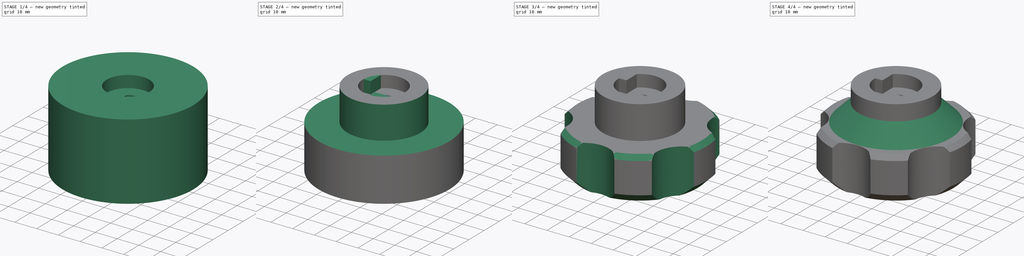
[diagram: build sequence overview — one tinted view per stage of 4, left to right]
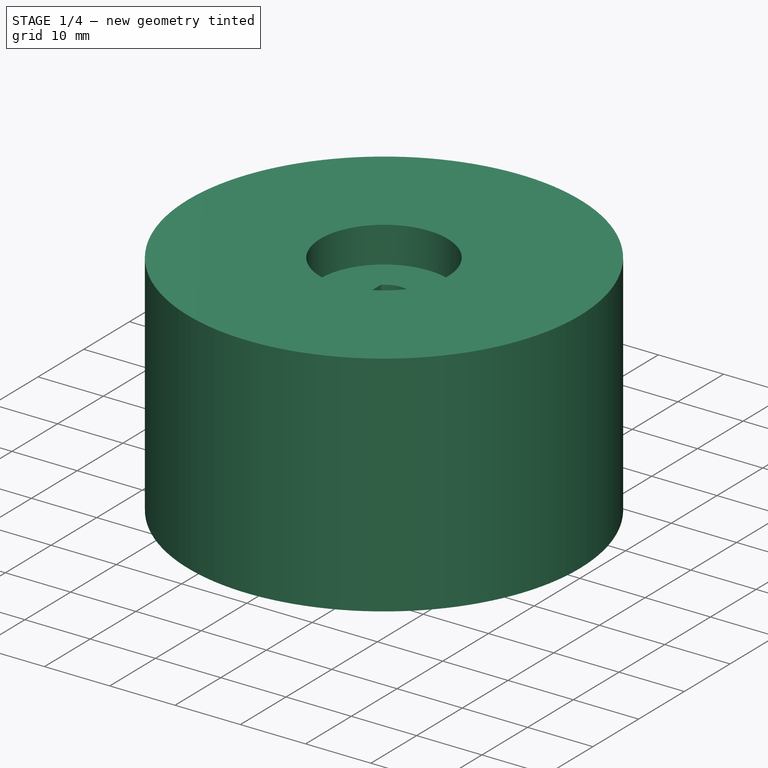
[diagram: stage 1 of 4 — iso view after this stage's code; geometry added in this stage tinted green]
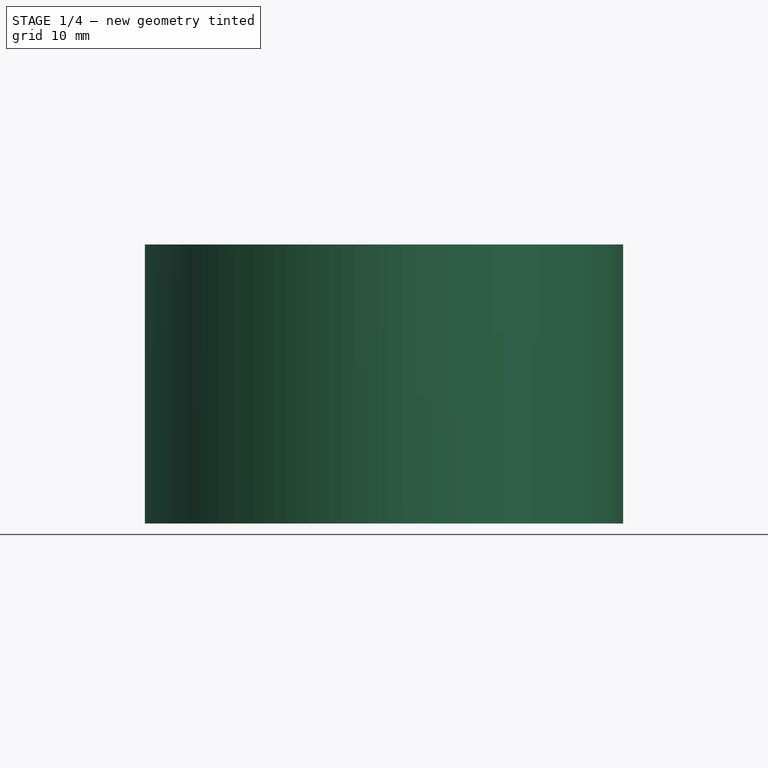
[diagram: stage 1 of 4 — front view after this stage's code; geometry added in this stage tinted green]
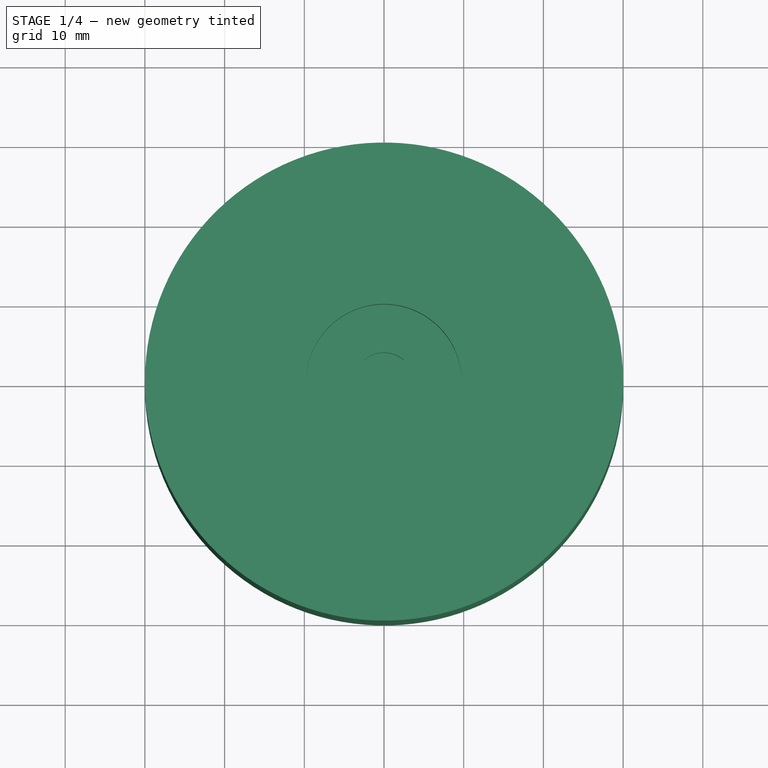
[diagram: stage 1 of 4 — top view after this stage's code; geometry added in this stage tinted green]
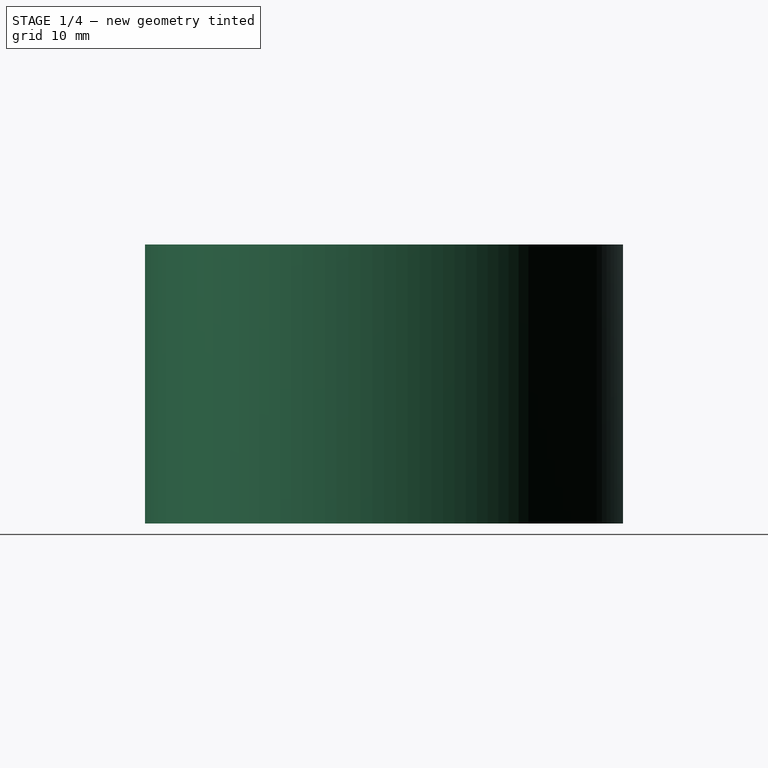
[diagram: stage 1 of 4 — right view after this stage's code; geometry added in this stage tinted green]
FCSTD DOCUMENT  (FreeCAD 0.19R)
Label: HoseKnobFront
License: All rights reserved
LicenseURL: http://en.wikipedia.org/wiki/All_rights_reserved
objects: Sketcher::SketchObject×9, PartDesign::Pocket×6, PartDesign::Chamfer×4, PartDesign::Pad×2, PartDesign::PolarPattern×1, PartDesign::Body×1
note: 35 computed .brp shape members not serialized (recipe doc carries the construction recipe); baked Part::Feature solids carry a one-line shape summary decoded from their .brp

FEATURE [Sketcher::SketchObject] Sketch
  FullyConstrained = true
  MapMode = 5
  Support = -> [XY_Plane]
  sketch-geometry (1):
    g0: Circle CenterX=0 CenterY=0 CenterZ=0 NormalX=0 NormalY=0 NormalZ=1 AngleXU=0 Radius=30
  constraints (2):
    c: Coincident(g0,g-1)
    c: Diameter(g0) = 60
FEATURE [PartDesign::Pad] Pad
  Direction = (1,1,1)
  Length = 35
  Length2 = 100
  Profile = -> Sketch
  Type = 0
FEATURE [Sketcher::SketchObject] Sketch001
  FullyConstrained = true
  MapMode = 5
  Placement = pos=(0,0,35) rot=(0,0,1;0rad)
  Support = -> [Pad]
  sketch-geometry (1):
    g0: Circle CenterX=0 CenterY=0 CenterZ=0 NormalX=0 NormalY=0 NormalZ=1 AngleXU=0 Radius=9.75
  constraints (2):
    c: Coincident(g0,g-1)
    c: Diameter(g0) = 19.5
FEATURE [PartDesign::Pocket] Pocket
  BaseFeature = -> Pad
  Length = 5.5
  Length2 = 100
  Profile = -> Sketch001
  Type = 0
FEATURE [Sketcher::SketchObject] Sketch002
  FullyConstrained = true
  MapMode = 5
  Placement = pos=(0,0,29.5) rot=(0,0,1;0rad)
  Support = -> [Pocket]
  sketch-geometry (4):
    g0: LineSegment StartX=2.45 StartY=-2.83901 StartZ=0 EndX=2.45 EndY=2.83901 EndZ=0
    g1: LineSegment StartX=-2.45 StartY=-2.83901 StartZ=0 EndX=-2.45 EndY=2.83901 EndZ=0
    g2: ArcOfCircle CenterX=0 CenterY=0 CenterZ=0 NormalX=0 NormalY=0 NormalZ=1 AngleXU=0 Radius=3.75 StartAngle=0.858817 EndAngle=2.28278
    g3: ArcOfCircle CenterX=0 CenterY=0 CenterZ=0 NormalX=0 NormalY=0 NormalZ=1 AngleXU=0 Radius=3.75 StartAngle=4.00041 EndAngle=5.42437
  constraints (11):
    c: Parallel(g0,g1)
    c: Symmetric(g0,g0,g-1)
    c: Equal(g1,g0)
    c: Distance(g1,g0) = 4.9
    c: Coincident(g2,g-1)
    c: Coincident(g3,g2)
    c: Diameter(g3) = 7.5
    c: Coincident(g0,g2)
    c: Coincident(g1,g2)
    c: Coincident(g3,g0)
    c: Coincident(g3,g1)
FEATURE [PartDesign::Pocket] Pocket001
  BaseFeature = -> Pocket
  Length = 3.5
  Length2 = 100
  Profile = -> Sketch002
  Type = 0
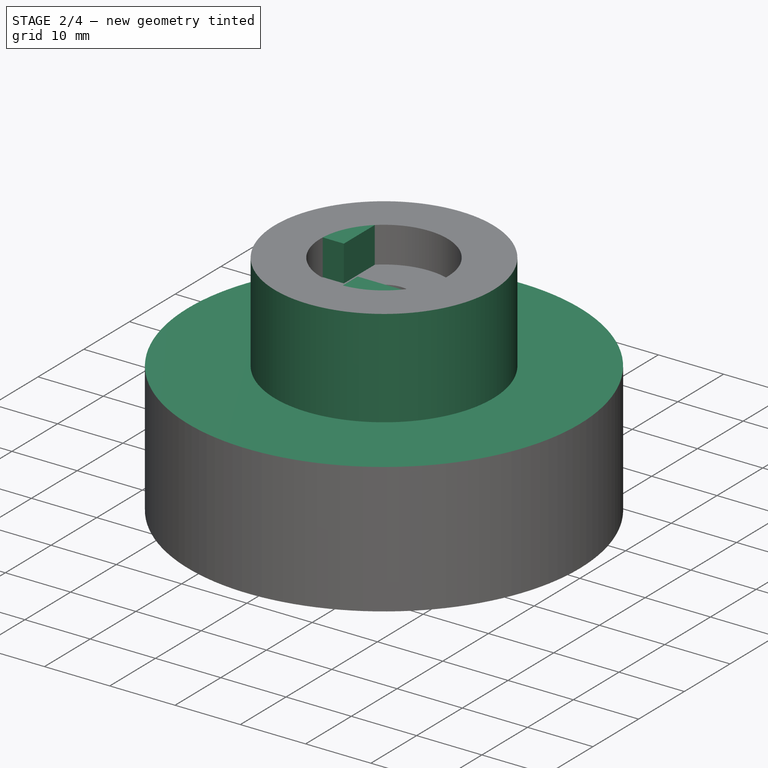
[diagram: stage 2 of 4 — iso view after this stage's code; geometry added in this stage tinted green]
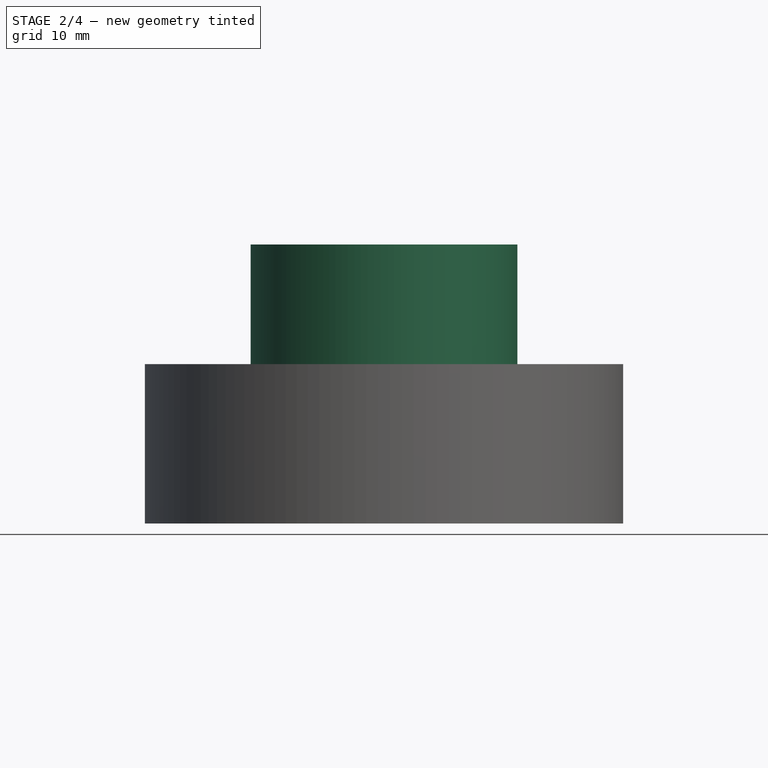
[diagram: stage 2 of 4 — front view after this stage's code; geometry added in this stage tinted green]
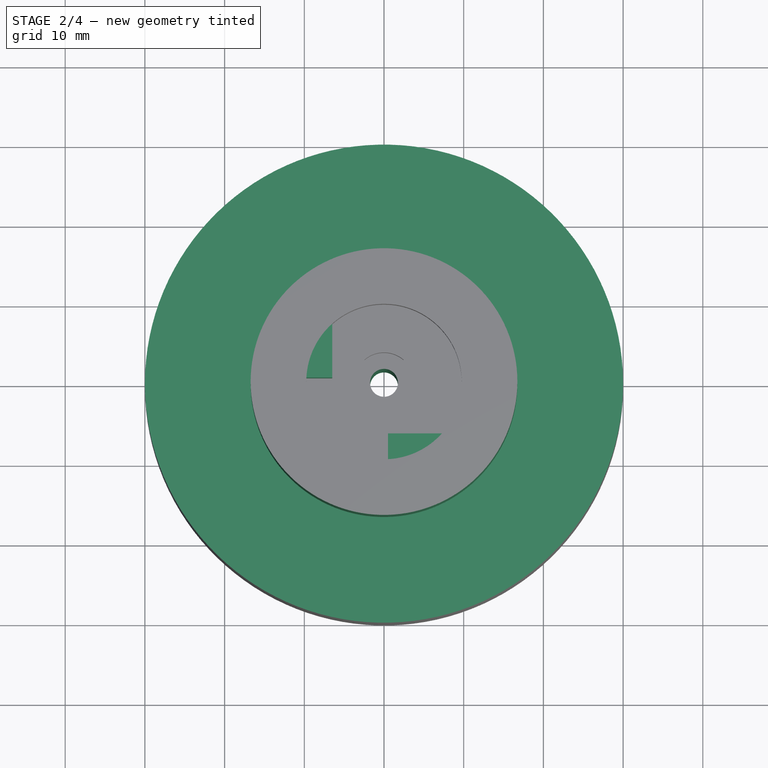
[diagram: stage 2 of 4 — top view after this stage's code; geometry added in this stage tinted green]
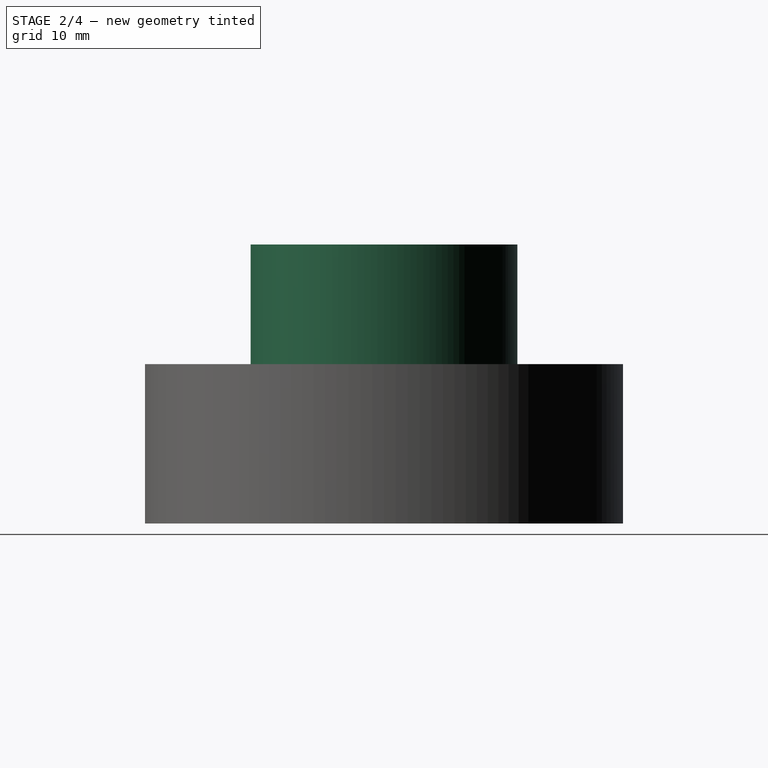
[diagram: stage 2 of 4 — right view after this stage's code; geometry added in this stage tinted green]
FEATURE [Sketcher::SketchObject] Sketch003
  FullyConstrained = true
  MapMode = 5
  Placement = pos=(0,0,26) rot=(0,0,1;0rad)
  Support = -> [Pocket001]
  sketch-geometry (1):
    g0: Circle CenterX=0 CenterY=0 CenterZ=0 NormalX=0 NormalY=0 NormalZ=1 AngleXU=0 Radius=1.75
  constraints (2):
    c: Coincident(g0,g-1)
    c: Diameter(g0) = 3.5
FEATURE [PartDesign::Pocket] Pocket002
  BaseFeature = -> Pocket001
  Length = 5
  Length2 = 100
  Profile = -> Sketch003
  Type = 1
FEATURE [Sketcher::SketchObject] Sketch004
  FullyConstrained = true
  MapMode = 5
  Placement = pos=(0,0,35) rot=(0,0,1;0rad)
  Support = -> [Pocket002]
  sketch-geometry (6):
    g0: LineSegment StartX=-6.5 StartY=10.2559 StartZ=0 EndX=-6.5 EndY=0.5 EndZ=0
    g1: LineSegment StartX=-12.4169 StartY=0.5 StartZ=0 EndX=-6.5 EndY=0.5 EndZ=0
    g2: LineSegment StartX=-12.4169 StartY=0.5 StartZ=0 EndX=-6.5 EndY=10.2559 EndZ=0
    g3: LineSegment StartX=0.5 StartY=-6.5 StartZ=0 EndX=0.5 EndY=-15.1167 EndZ=0
    g4: LineSegment StartX=0.5 StartY=-15.1167 StartZ=0 EndX=10.6968 EndY=-6.5 EndZ=0
    g5: LineSegment StartX=10.6968 StartY=-6.5 StartZ=0 EndX=0.5 EndY=-6.5 EndZ=0
  constraints (18):
    c: Vertical(g0)
    c: Coincident(g1,g0)
    c: Horizontal(g1)
    c: Coincident(g1,g2)
    c: Coincident(g2,g0)
    c: Vertical(g3)
    c: Coincident(g3,g4)
    c: Coincident(g4,g5)
    c: Coincident(g5,g3)
    c: Horizontal(g5)
    c: DistanceX(g3) = 0.5
    c: DistanceY(g0) = 0.5
    c: DistanceX(g0) = -6.5
    c: DistanceY(g3) = -6.5
    c: Distance(g2) = 11.41
    c: Distance(g4) = 13.35
    c: DistanceX(g4) = 10.6968
    c: DistanceY(g0) = 10.2559
FEATURE [PartDesign::Pad] Pad001
  BaseFeature = -> Pocket002
  Direction = (1,1,1)
  Length = 9
  Length2 = 100
  Profile = -> Sketch004
  Reversed = true
  Type = 0
FEATURE [Sketcher::SketchObject] Sketch005
  FullyConstrained = true
  MapMode = 5
  Placement = pos=(0,0,35) rot=(0,0,1;0rad)
  Support = -> [Pad]
  sketch-geometry (1):
    g0: Circle CenterX=0 CenterY=30 CenterZ=0 NormalX=0 NormalY=0 NormalZ=1 AngleXU=0 Radius=6
  constraints (3):
    c: PointOnObject(g0,g-2)
    c: DistanceY(g0) = 30
    c: Diameter(g0) = 12
FEATURE [Sketcher::SketchObject] Sketch006
  FullyConstrained = false
  MapMode = 5
  Placement = pos=(0,0,35) rot=(0,0,1;0rad)
  Support = -> [Pad001]
  sketch-geometry (2):
    g0: Circle CenterX=0 CenterY=0 CenterZ=0 NormalX=0 NormalY=0 NormalZ=1 AngleXU=0 Radius=16.7349
    g1: Circle CenterX=0 CenterY=0 CenterZ=0 NormalX=0 NormalY=0 NormalZ=1 AngleXU=0 Radius=36.5467
  constraints (2):
    c: Coincident(g0,g-1)
    c: Coincident(g1,g0)
FEATURE [PartDesign::Pocket] Pocket003
  BaseFeature = -> Pad001
  Length = 15
  Length2 = 100
  Profile = -> Sketch006
  Type = 0
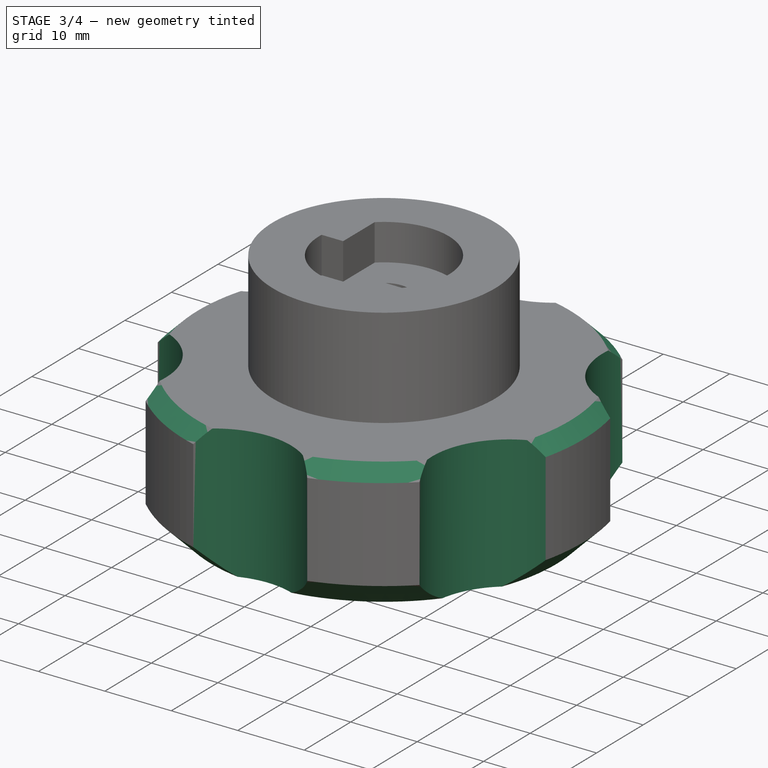
[diagram: stage 3 of 4 — iso view after this stage's code; geometry added in this stage tinted green]
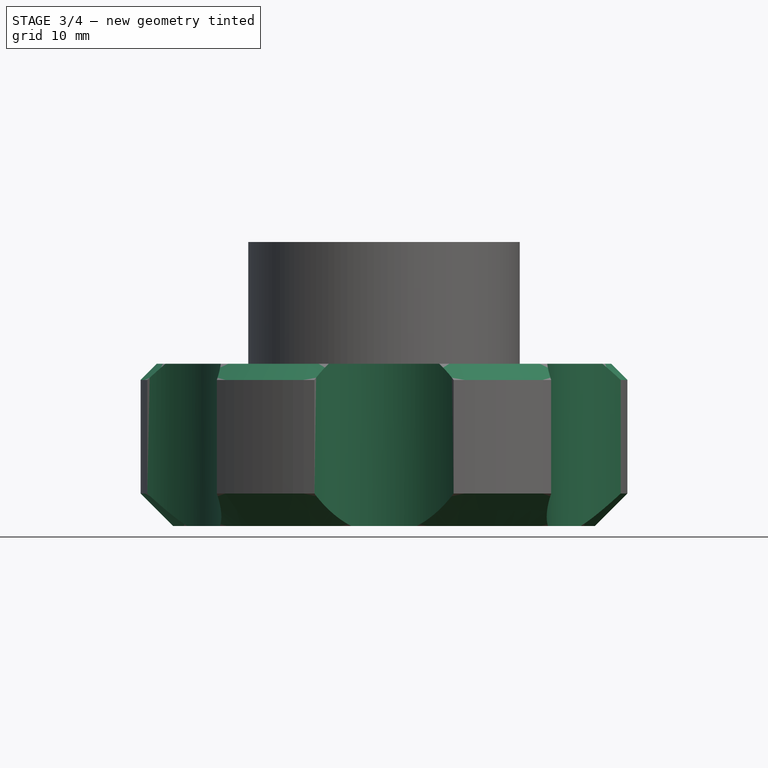
[diagram: stage 3 of 4 — front view after this stage's code; geometry added in this stage tinted green]
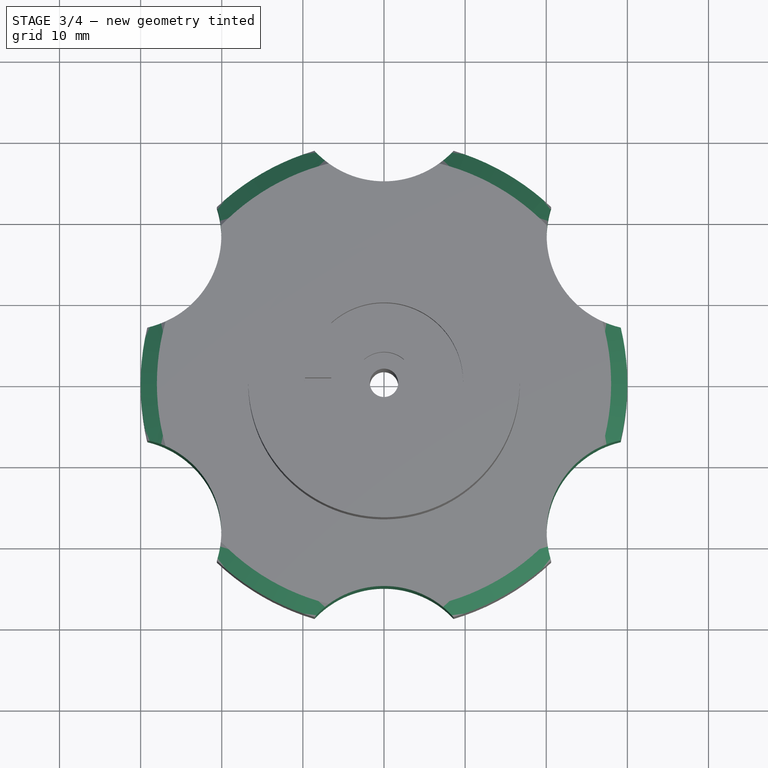
[diagram: stage 3 of 4 — top view after this stage's code; geometry added in this stage tinted green]
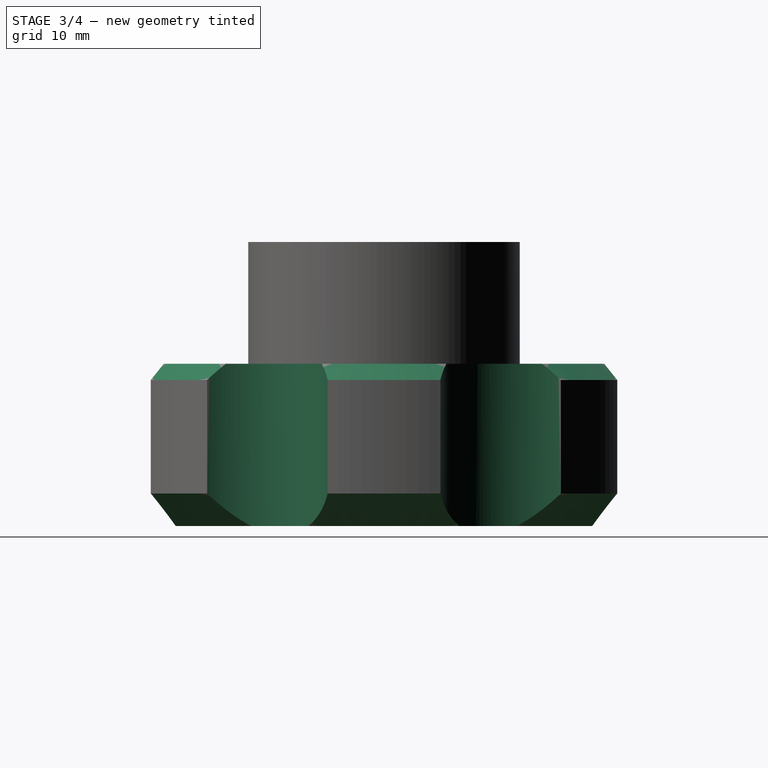
[diagram: stage 3 of 4 — right view after this stage's code; geometry added in this stage tinted green]
FEATURE [Sketcher::SketchObject] Sketch008
  FullyConstrained = false
  MapMode = 5
  Placement = pos=(0,0,0) rot=(1,0,0;3.14159rad)
  Support = -> [Pocket003]
  sketch-geometry (1):
    g0: Circle CenterX=0 CenterY=36.5239 CenterZ=0 NormalX=0 NormalY=0 NormalZ=1 AngleXU=0 Radius=11.5768
  constraints (1):
    c: PointOnObject(g0,g-2)
FEATURE [PartDesign::Pocket] Pocket004
  BaseFeature = -> Pocket003
  Length = 5
  Length2 = 100
  Profile = -> Sketch008
  Type = 1
FEATURE [PartDesign::PolarPattern] PolarPattern
  Angle = 360
  Axis = -> Sketch008 [N_Axis]
  BaseFeature = -> Pocket004
  Occurrences = 6
  Originals = -> [Pocket004]
FEATURE [PartDesign::Chamfer] Chamfer
  Angle = 45
  Base = -> PolarPattern [Edge27,Edge29,Edge31,Edge23,Edge25,Edge5]
  BaseFeature = -> PolarPattern
  ChamferType = 0
  FlipDirection = false
  Size = 4
  Size2 = 1
  SupportTransform = false
FEATURE [PartDesign::Chamfer] Chamfer001
  Angle = 45
  Base = -> Chamfer [Edge3,Edge12,Edge20,Edge18,Edge14,Edge16]
  BaseFeature = -> Chamfer
  ChamferType = 0
  FlipDirection = false
  Size = 2
  Size2 = 1
  SupportTransform = false
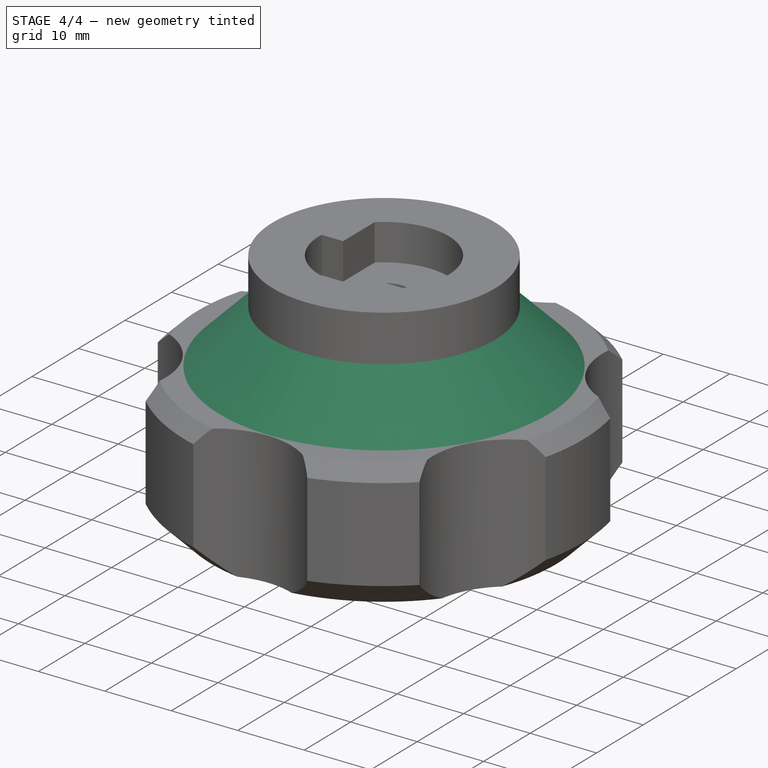
[diagram: stage 4 of 4 — iso view after this stage's code; geometry added in this stage tinted green]
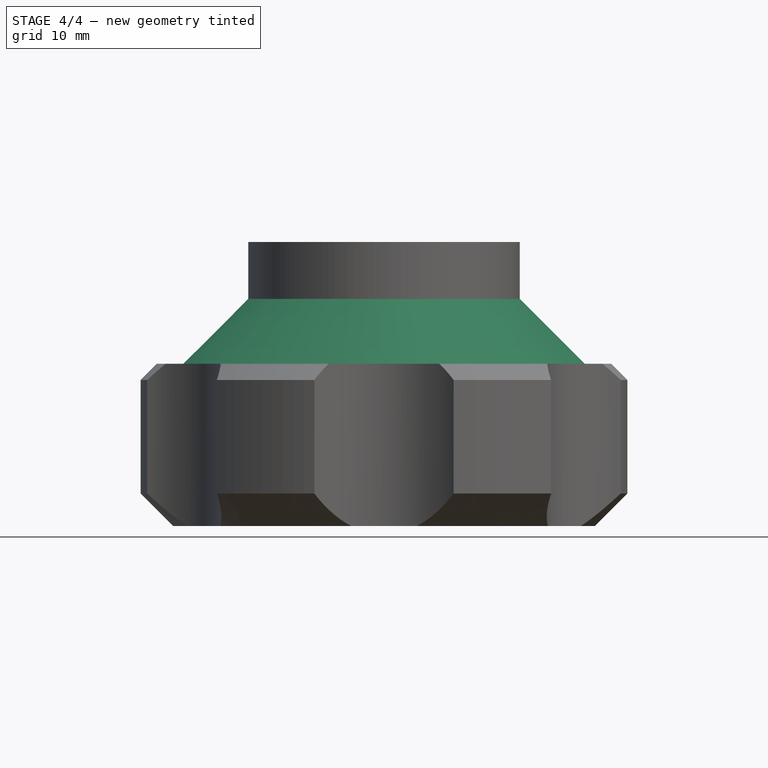
[diagram: stage 4 of 4 — front view after this stage's code; geometry added in this stage tinted green]
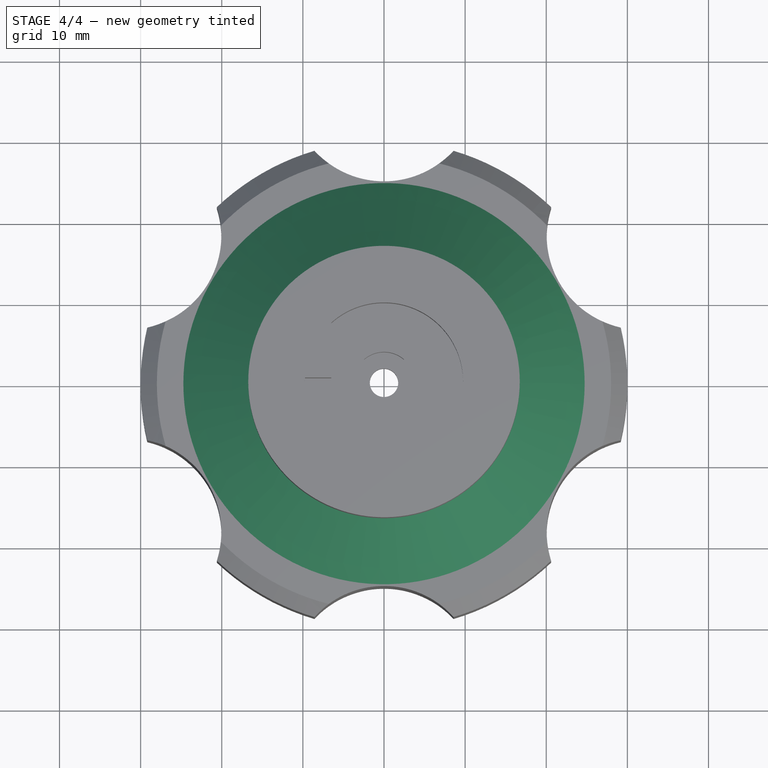
[diagram: stage 4 of 4 — top view after this stage's code; geometry added in this stage tinted green]
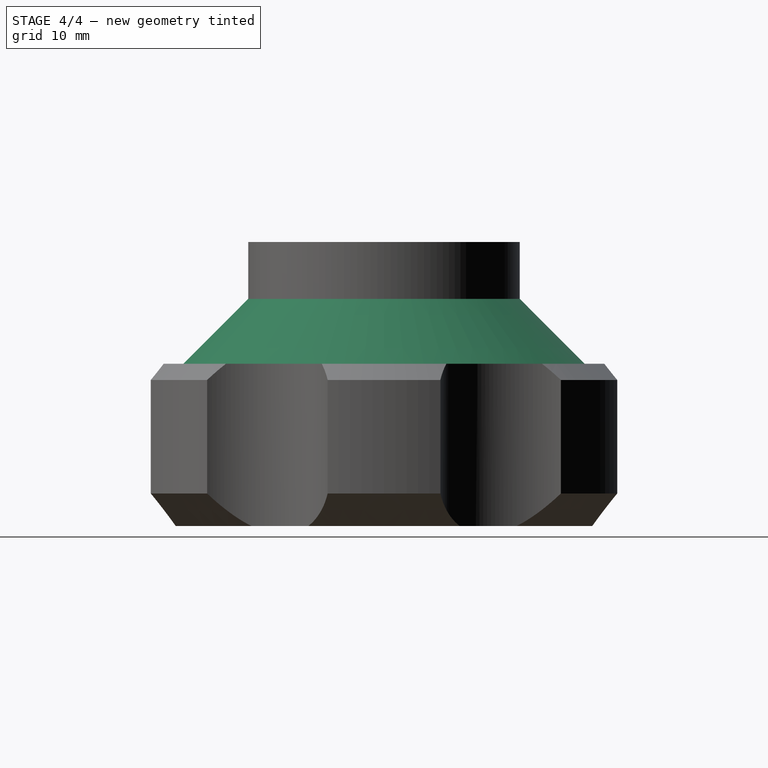
[diagram: stage 4 of 4 — right view after this stage's code; geometry added in this stage tinted green]
FEATURE [Sketcher::SketchObject] Sketch009
  FullyConstrained = true
  MapMode = 5
  Placement = pos=(0,0,0) rot=(1,0,0;3.14159rad)
  Support = -> [Chamfer001]
  sketch-geometry (1):
    g0: Circle CenterX=0 CenterY=0 CenterZ=0 NormalX=0 NormalY=0 NormalZ=1 AngleXU=0 Radius=3
  constraints (2):
    c: Coincident(g0,g-1)
    c: Diameter(g0) = 6
FEATURE [PartDesign::Pocket] Pocket005
  BaseFeature = -> Chamfer001
  Length = 23
  Length2 = 100
  Profile = -> Sketch009
  Type = 0
FEATURE [PartDesign::Chamfer] Chamfer002
  Angle = 45
  Base = -> Pocket005 [Edge47]
  BaseFeature = -> Pocket005
  ChamferType = 0
  FlipDirection = false
  Size = 2
  Size2 = 1
  SupportTransform = false
FEATURE [PartDesign::Chamfer] Chamfer003
  Angle = 45
  Base = -> Chamfer002 [Edge77]
  BaseFeature = -> Chamfer002
  ChamferType = 0
  FlipDirection = false
  Size = 8
  Size2 = 1
  SupportTransform = false
FEATURE [PartDesign::Body] Body
  Group = -> [Sketch,Pad,Sketch001,Pocket,Sketch002,Pocket001,Sketch003,Pocket002,Sketch004,Pad001,Sketch005,Sketch006,Sketch008,Pocket003,Pocket004,PolarPattern,Chamfer,Chamfer001,Sketch009,Pocket005,Chamfer002,Chamfer003]
  Origin = -> Origin
  Tip = -> Chamfer003
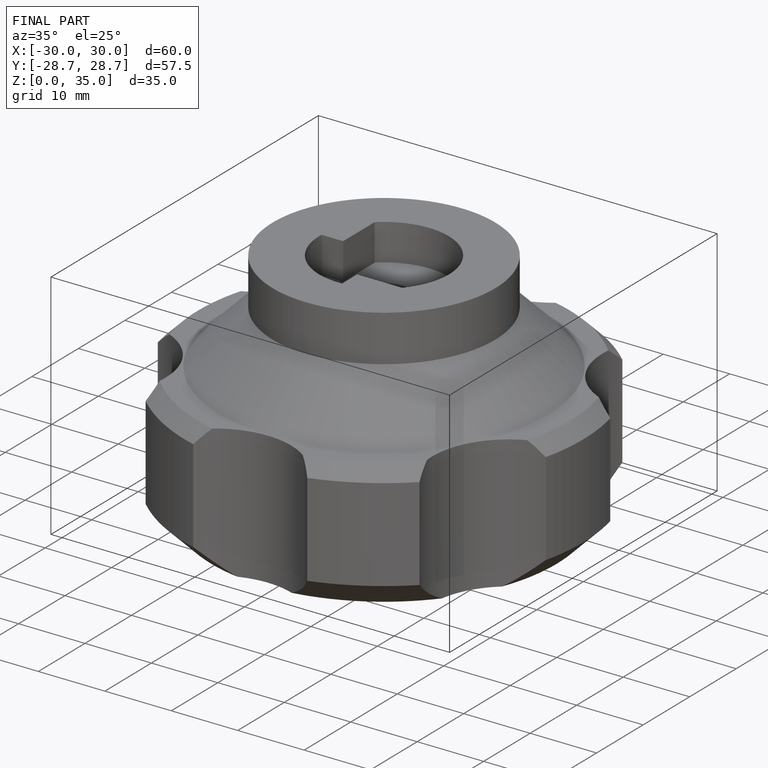
[diagram: finished part — iso view with bounding-box wireframe]
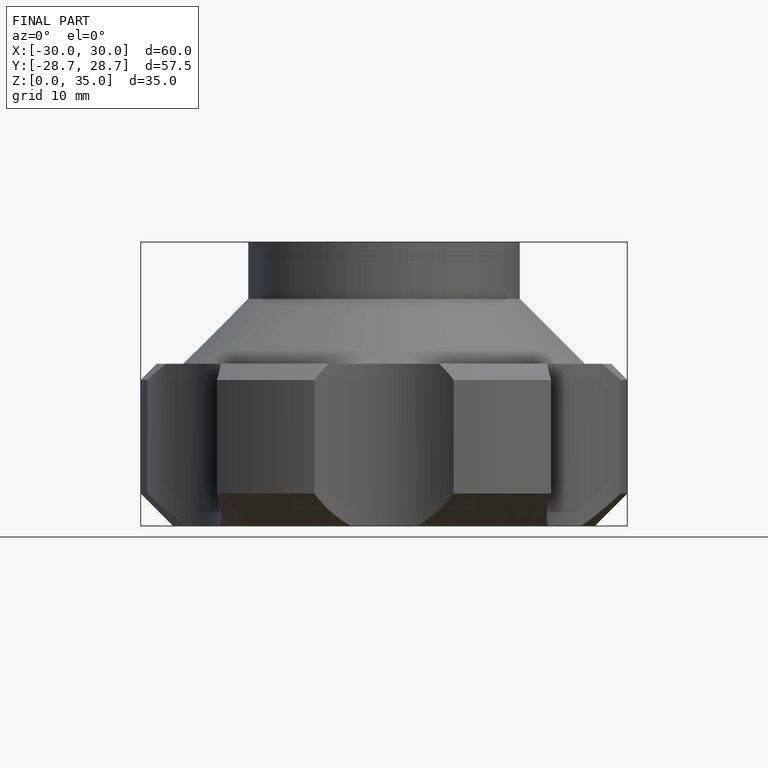
[diagram: finished part — front view with bounding-box wireframe]
